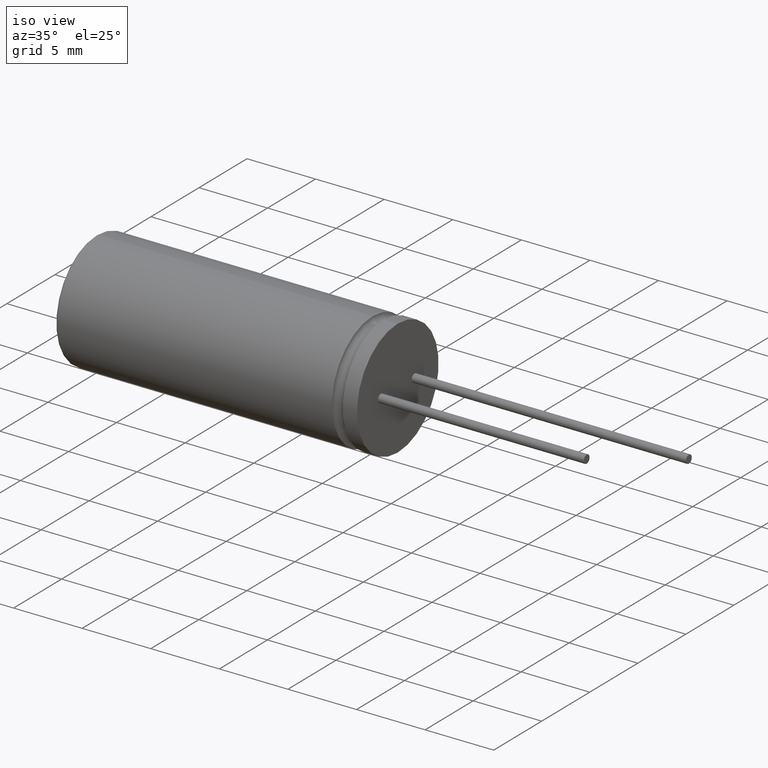
[diagram: clean part render]
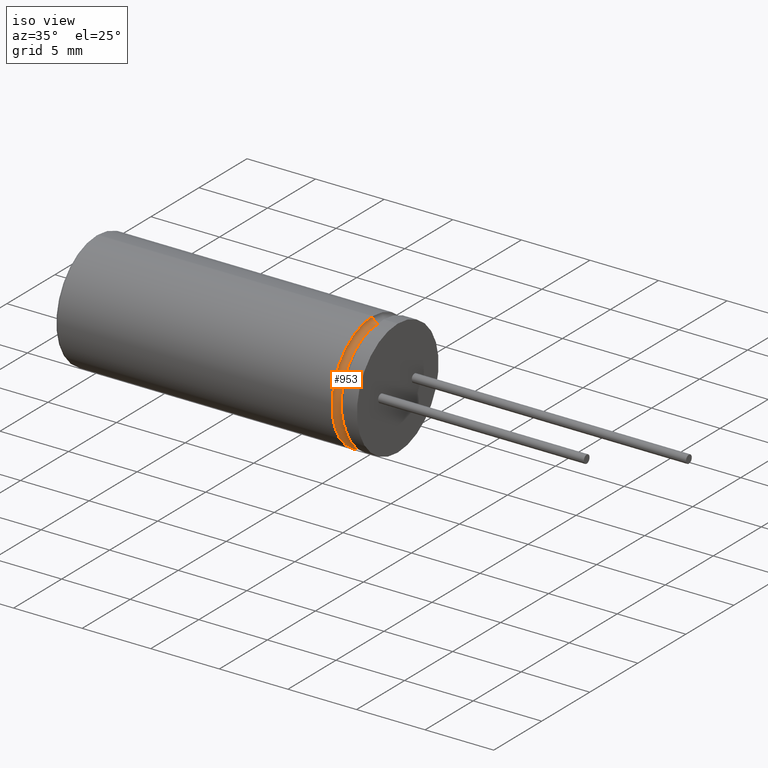
[diagram: same view with one face highlighted and labeled with its STEP entity id]
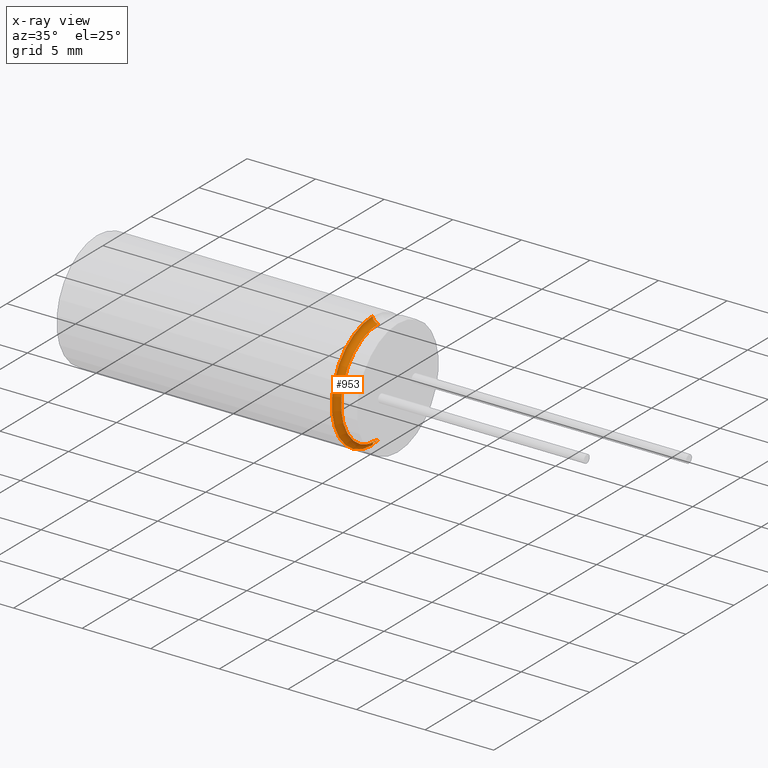
[diagram: x-ray of the same camera — body ghosted, the highlighted face saturated]
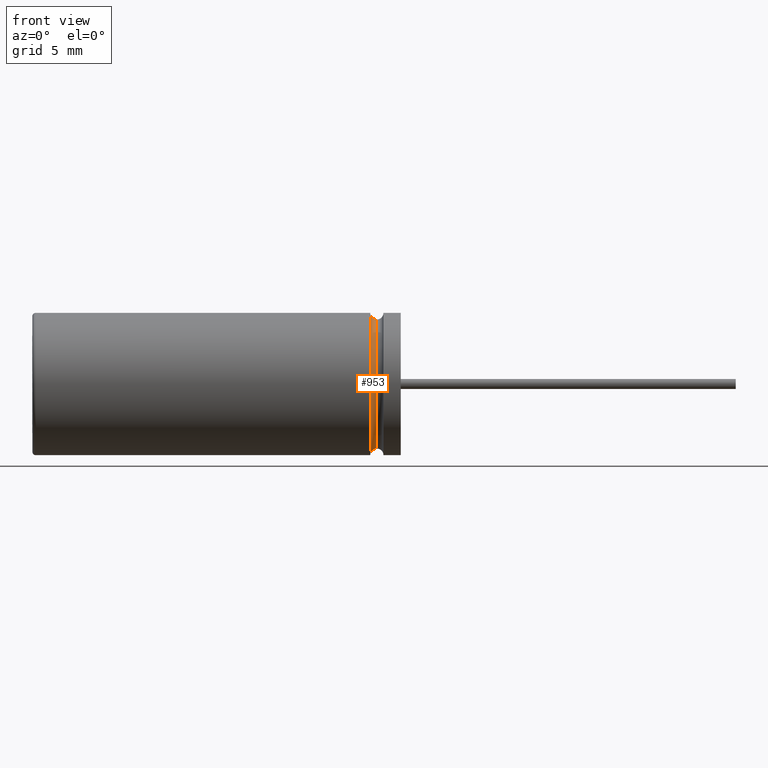
[diagram: same view with one face highlighted and labeled with its STEP entity id]
A machine part, iso view. The second image highlights one B-rep face of the part: STEP entity #953.
The next image is the same camera in x-ray: the body ghosted, the highlighted face saturated — about 0% of this face is hidden behind the body in this view.
A second angle (front view) of the same face is appended — the face is thin or edge-on in the first view.
In plain terms, the highlighted toroidal blend (fillet) surface has major radius 4.25 mm and minor (blend) radius 0.3966 mm.
Its self-contained STEP definition (entity closure, byte-faithful):
#60 = FACE_OUTER_BOUND ( 'NONE', #1307, .T. ) ;
#63 = AXIS2_PLACEMENT_3D ( 'NONE', #793, #1086, #2884 ) ;
#120 = ORIENTED_EDGE ( 'NONE', *, *, #1829, .F. ) ;
#167 = DIRECTION ( 'NONE',  ( 0.0000000000000000000, 1.000000000000000000, -1.224646799147353200E-016 ) ) ;
#176 = EDGE_CURVE ( 'NONE', #1291, #700, #3131, .T. ) ;
#225 = DIRECTION ( 'NONE',  ( 0.0000000000000000000, 0.0000000000000000000, -1.000000000000000000 ) ) ;
#529 = AXIS2_PLACEMENT_3D ( 'NONE', #3010, #1200, #912 ) ;
#700 = VERTEX_POINT ( 'NONE', #3307 ) ;
#793 = CARTESIAN_POINT ( 'NONE',  ( 20.56938999999999900, 0.0000000000000000000, -4.250000000000000000 ) ) ;
#912 = DIRECTION ( 'NONE',  ( 0.0000000000000000000, 0.0000000000000000000, -1.000000000000000000 ) ) ;
#953 = ADVANCED_FACE ( 'NONE', ( #60 ), #1733, .F. ) ;
#1065 = CARTESIAN_POINT ( 'NONE',  ( 20.56938999999999900, 0.0000000000000000000, -3.853390000000000100 ) ) ;
#1086 = DIRECTION ( 'NONE',  ( -0.0000000000000000000, -1.000000000000000000, -0.0000000000000000000 ) ) ;
#1117 = CIRCLE ( 'NONE', #3292, 0.3966100000000003500 ) ;
#1157 = DIRECTION ( 'NONE',  ( 1.000000000000000000, -0.0000000000000000000, -0.0000000000000000000 ) ) ;
#1199 = AXIS2_PLACEMENT_3D ( 'NONE', #1657, #1157, #3273 ) ;
#1200 = DIRECTION ( 'NONE',  ( 1.000000000000000000, -0.0000000000000000000, -0.0000000000000000000 ) ) ;
#1262 = CARTESIAN_POINT ( 'NONE',  ( 20.56938999999999900, 5.204748896376250700E-016, 4.250000000000000000 ) ) ;
#1266 = CARTESIAN_POINT ( 'NONE',  ( 20.17278000000000300, 5.204748896376250700E-016, 4.250000000000000000 ) ) ;
#1291 = VERTEX_POINT ( 'NONE', #1266 ) ;
#1307 = EDGE_LOOP ( 'NONE', ( #120, #3303, #1897, #1778 ) ) ;
#1377 = VERTEX_POINT ( 'NONE', #1065 ) ;
#1405 = EDGE_CURVE ( 'NONE', #1377, #700, #2858, .T. ) ;
#1657 = CARTESIAN_POINT ( 'NONE',  ( 20.56938999999999900, 0.0000000000000000000, 0.0000000000000000000 ) ) ;
#1733 = TOROIDAL_SURFACE ( 'NONE', #1199, 4.250000000000000000, 0.3966100000000003500 ) ;
#1752 = VERTEX_POINT ( 'NONE', #2415 ) ;
#1778 = ORIENTED_EDGE ( 'NONE', *, *, #1405, .F. ) ;
#1780 = DIRECTION ( 'NONE',  ( 1.000000000000000000, -0.0000000000000000000, -0.0000000000000000000 ) ) ;
#1829 = EDGE_CURVE ( 'NONE', #1752, #1377, #1983, .T. ) ;
#1883 = AXIS2_PLACEMENT_3D ( 'NONE', #3375, #1780, #225 ) ;
#1897 = ORIENTED_EDGE ( 'NONE', *, *, #176, .T. ) ;
#1983 = CIRCLE ( 'NONE', #529, 3.853390000000000100 ) ;
#2025 = EDGE_CURVE ( 'NONE', #1752, #1291, #1117, .T. ) ;
#2050 = DIRECTION ( 'NONE',  ( 0.0000000000000000000, 1.224646799147352000E-016, 1.000000000000000000 ) ) ;
#2415 = CARTESIAN_POINT ( 'NONE',  ( 20.56938999999999900, 4.719041729366419800E-016, 3.853390000000000100 ) ) ;
#2858 = CIRCLE ( 'NONE', #63, 0.3966100000000003500 ) ;
#2884 = DIRECTION ( 'NONE',  ( 0.0000000000000000000, 0.0000000000000000000, -1.000000000000000000 ) ) ;
#3010 = CARTESIAN_POINT ( 'NONE',  ( 20.56938999999999900, 0.0000000000000000000, 0.0000000000000000000 ) ) ;
#3131 = CIRCLE ( 'NONE', #1883, 4.250000000000000900 ) ;
#3273 = DIRECTION ( 'NONE',  ( 0.0000000000000000000, 0.0000000000000000000, -1.000000000000000000 ) ) ;
#3292 = AXIS2_PLACEMENT_3D ( 'NONE', #1262, #167, #2050 ) ;
#3303 = ORIENTED_EDGE ( 'NONE', *, *, #2025, .T. ) ;
#3307 = CARTESIAN_POINT ( 'NONE',  ( 20.17278000000000300, 0.0000000000000000000, -4.250000000000000000 ) ) ;
#3375 = CARTESIAN_POINT ( 'NONE',  ( 20.17277999999999900, 0.0000000000000000000, 0.0000000000000000000 ) ) ;